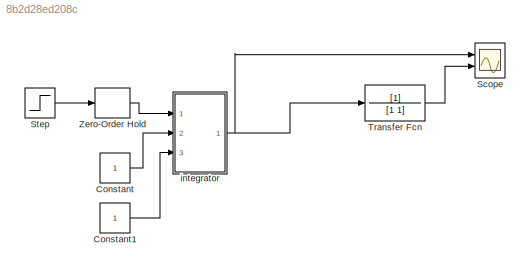
MODEL slx_8b2d28ed208c
KIND model
BLOCK [Constant] Constant
BLOCK [Constant] Constant1
BLOCK [Scope] Scope
  DataFormat = StructureWithTime
  Floating = off
  NumInputPorts = 2
  Ports = [2]
  SampleTime = 0
  ShowLegends = off
  YMax = 1~1
  YMin = 0~0
BLOCK [Step] Step
  After = 5
  SampleTime = 0
  Time = 0
BLOCK [TransferFcn] Transfer Fcn
  Denominator = [1 1]
BLOCK [ZeroOrderHold] Zero-Order Hold
  SampleTime = 0.5
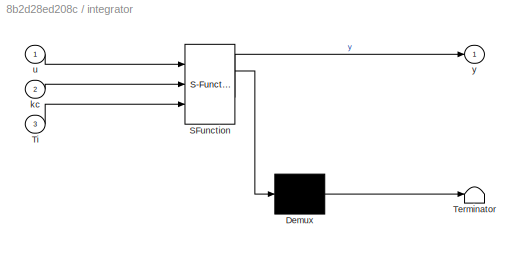
BLOCK [SubSystem] integrator 
  ErrorFcn = Stateflow.Translate.translate
  PermitHierarchicalResolution = ExplicitOnly
  Ports = [3, 1]
  RequestExecContextInheritance = off
  SFBlockType = MATLAB Function
  TreatAsAtomicUnit = on
BLOCK [Demux] integrator / Demux 
  Outputs = 1
  Ports = [1, 1]
BLOCK [S-Function] integrator / SFunction 
  EnableBusSupport = on
  FunctionName = sf_sfun
  PortCounts = [3 2]
  Ports = [3, 2]
  Tag = Stateflow S-Function sample1_transfer_function 2
BLOCK [Terminator] integrator / Terminator 
BLOCK [Inport] integrator /Ti
  IconDisplay = Port number
  Port = 3
BLOCK [Inport] integrator /kc
  IconDisplay = Port number
  Port = 2
BLOCK [Inport] integrator /u
  IconDisplay = Port number
BLOCK [Outport] integrator /y
  IconDisplay = Port number
LINE Constant1:1 -> integrator :3
LINE Constant:1 -> integrator :2
LINE Step:1 -> Zero-Order Hold:1
LINE Transfer Fcn:1 -> Scope:2
LINE Zero-Order Hold:1 -> integrator :1
NET integrator :1 -> Scope:1, Transfer Fcn:1
note: NET lines group one-source signal fan-out (src -> all destinations, sorted); 1:1 wires keep LINE
CHART integrator
 states=1 transitions=1
  STATE_LABEL 'eML_blk_kernel()'
  STATE_LABEL 'SCRIPT:\nfunction y = fcn(u, kc, Ti)\n\npersistent I % статическая переменная\n\nif isempty(I)\n    I = 0;\nend\nI = I + u;\n\ny = I;'
